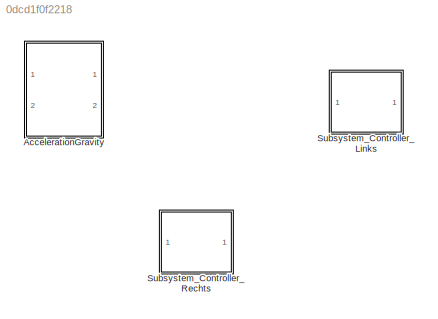
MODEL slx_0dcd1f0f2218
KIND model
CONFIG AbsTol = auto
CONFIG FixedStep = auto
CONFIG MaxStep = auto
CONFIG MinStep = auto
CONFIG RelTol = 1e-3
CONFIG SampleTimeConstraint = Unconstrained
CONFIG Solver = VariableStepAuto
CONFIG SolverMode = Auto
CONFIG SolverName = VariableStepAuto
CONFIG StartTime = 0.0
CONFIG StopTime = 10.0
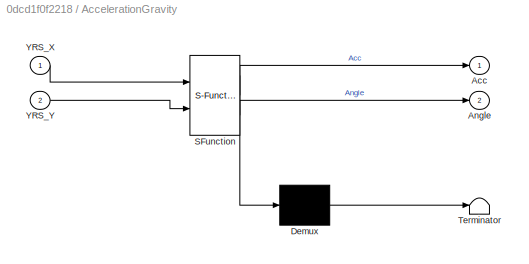
BLOCK [SubSystem] AccelerationGravity
  ErrorFcn = Stateflow.Translate.translate
  PermitHierarchicalResolution = ExplicitOnly
  Ports = [2, 2]
  RequestExecContextInheritance = off
  SFBlockType = MATLAB Function
  TreatAsAtomicUnit = on
  Variant = off
BLOCK [Demux] AccelerationGravity/ Demux 
  Outputs = 1
  Ports = [1, 1]
BLOCK [S-Function] AccelerationGravity/ SFunction 
  EnableBusSupport = off
  FunctionName = sf_sfun
  PortCounts = [2 3]
  Ports = [2, 3]
  SFunctionDeploymentMode = off
  Tag = Stateflow S-Function Untitled1 2
BLOCK [Terminator] AccelerationGravity/ Terminator 
BLOCK [Outport] AccelerationGravity/Acc
  IconDisplay = Port number
BLOCK [Outport] AccelerationGravity/Angle
  IconDisplay = Port number
  Port = 2
BLOCK [Inport] AccelerationGravity/YRS_X
  IconDisplay = Port number
BLOCK [Inport] AccelerationGravity/YRS_Y
  IconDisplay = Port number
  Port = 2
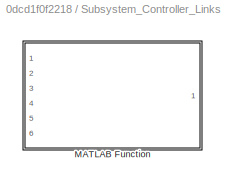
BLOCK [SubSystem] Subsystem_Controller_Links 
  Ports = []
  RequestExecContextInheritance = off
  Variant = off
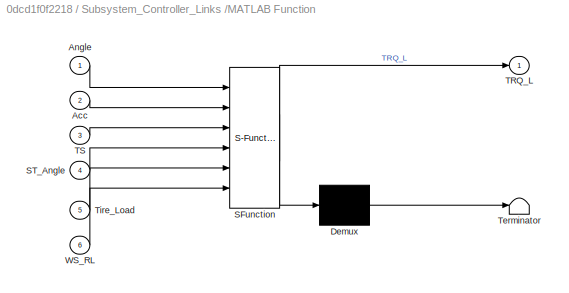
BLOCK [SubSystem] Subsystem_Controller_Links /MATLAB Function
  ErrorFcn = Stateflow.Translate.translate
  PermitHierarchicalResolution = ExplicitOnly
  Ports = [6, 1]
  RequestExecContextInheritance = off
  SFBlockType = MATLAB Function
  TreatAsAtomicUnit = on
  Variant = off
BLOCK [Demux] Subsystem_Controller_Links /MATLAB Function/ Demux 
  Outputs = 1
  Ports = [1, 1]
BLOCK [S-Function] Subsystem_Controller_Links /MATLAB Function/ SFunction 
  EnableBusSupport = off
  FunctionName = sf_sfun
  PortCounts = [6 2]
  Ports = [6, 2]
  SFunctionDeploymentMode = off
  Tag = Stateflow S-Function Untitled1 1
BLOCK [Terminator] Subsystem_Controller_Links /MATLAB Function/ Terminator 
BLOCK [Inport] Subsystem_Controller_Links /MATLAB Function/Acc
  IconDisplay = Port number
  Port = 2
BLOCK [Inport] Subsystem_Controller_Links /MATLAB Function/Angle
  IconDisplay = Port number
BLOCK [Inport] Subsystem_Controller_Links /MATLAB Function/ST_Angle
  IconDisplay = Port number
  Port = 4
BLOCK [Outport] Subsystem_Controller_Links /MATLAB Function/TRQ_L
  IconDisplay = Port number
BLOCK [Inport] Subsystem_Controller_Links /MATLAB Function/TS
  IconDisplay = Port number
  Port = 3
BLOCK [Inport] Subsystem_Controller_Links /MATLAB Function/Tire_Load
  IconDisplay = Port number
  Port = 5
BLOCK [Inport] Subsystem_Controller_Links /MATLAB Function/WS_RL
  IconDisplay = Port number
  Port = 6
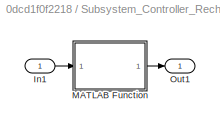
BLOCK [SubSystem] Subsystem_Controller_Rechts
  Ports = [1, 1]
  RequestExecContextInheritance = off
  Variant = off
BLOCK [Inport] Subsystem_Controller_Rechts/In1
  IconDisplay = Port number
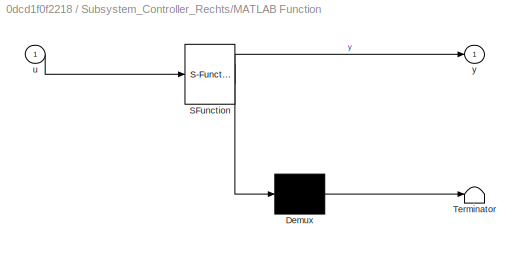
BLOCK [SubSystem] Subsystem_Controller_Rechts/MATLAB Function
  ErrorFcn = Stateflow.Translate.translate
  PermitHierarchicalResolution = ExplicitOnly
  Ports = [1, 1]
  RequestExecContextInheritance = off
  SFBlockType = MATLAB Function
  TreatAsAtomicUnit = on
  Variant = off
BLOCK [Demux] Subsystem_Controller_Rechts/MATLAB Function/ Demux 
  Outputs = 1
  Ports = [1, 1]
BLOCK [S-Function] Subsystem_Controller_Rechts/MATLAB Function/ SFunction 
  EnableBusSupport = off
  FunctionName = sf_sfun
  PortCounts = [1 2]
  Ports = [1, 2]
  SFunctionDeploymentMode = off
  Tag = Stateflow S-Function Untitled1 3
BLOCK [Terminator] Subsystem_Controller_Rechts/MATLAB Function/ Terminator 
BLOCK [Inport] Subsystem_Controller_Rechts/MATLAB Function/u
  IconDisplay = Port number
BLOCK [Outport] Subsystem_Controller_Rechts/MATLAB Function/y
  IconDisplay = Port number
BLOCK [Outport] Subsystem_Controller_Rechts/Out1
  IconDisplay = Port number
LINE Subsystem_Controller_Rechts/In1:1 -> Subsystem_Controller_Rechts/MATLAB Function:1
LINE Subsystem_Controller_Rechts/MATLAB Function:1 -> Subsystem_Controller_Rechts/Out1:1
CHART Subsystem_Controller_Links
/MATLAB Function states=1 transitions=1
  STATE_LABEL 'eML_blk_kernel()'
  STATE_LABEL 'SCRIPT:\nfunction TRQ_L = Acc_G(Angle,Acc,TS,ST_Angle,Tire_Load,WS_RL)\ni = 0 ;\n%De output van deze functie is het koppel dat uitgestuurd moet worden.\n% De inputs zijn de zwaartepuntsversnelling,hoek,Stearangle,gas sensor\n\nTS_TRQ = TS * Tire_Load ;                             % Berekenen van het koppel da de motor mag leveren rekening houdend met de procenturele indrukking van de gas pedaal\n\n\nwhile ...<+1278ch>'
CHART AccelerationGravity states=1 transitions=1
  STATE_LABEL 'eML_blk_kernel()'
  STATE_LABEL 'SCRIPT:\nfunction[Acc,Angle]= Acc_G(YRS_X,YRS_Y)\n% De versnelling van de Yaw-rate sensor is niet dezelfde als deze van het zwaarte punt.\n%Deze functie is geschreven om de omvorming ervan te realiseren\n\nYRS = sqrt (YRS_X^2+ YRS_Y^2);% versnelling yaw-rate sensor\nAngle = tan (YRS_Y/ YRS_X);% hoek dat de vector maakt met de x-as\n\nR1 = 29; %radius van de yaw-rate ten opzichte van zwaartepunt\nR2 = 35; %...<+252ch>'
CHART Subsystem_Controller_Rechts/MATLAB Function states=1 transitions=1
  STATE_LABEL 'eML_blk_kernel()'
  STATE_LABEL 'SCRIPT:\nfunction y = fcn(u)\n%#codegen\n\ny = u;'
